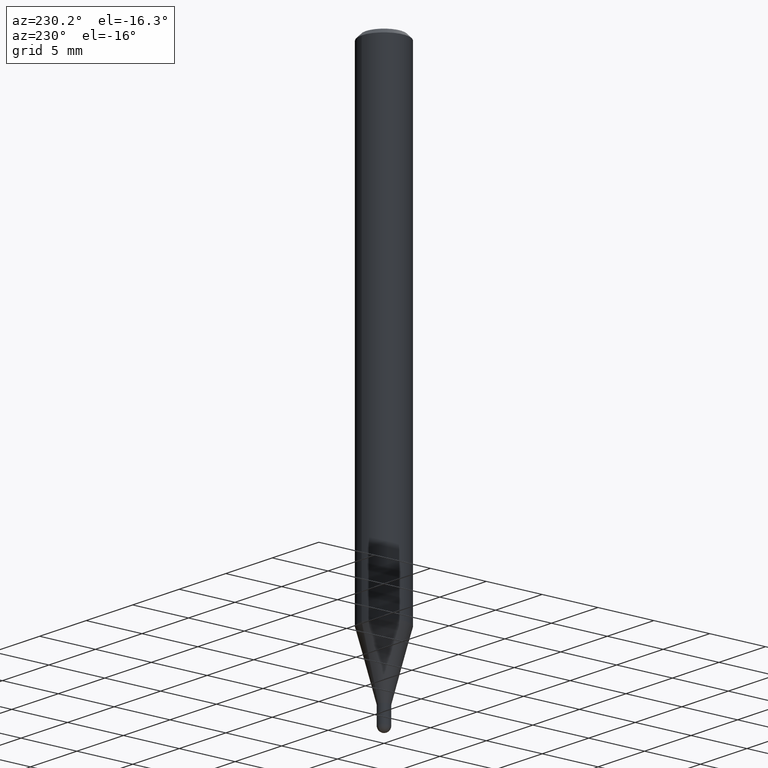
[diagram: clean part render]
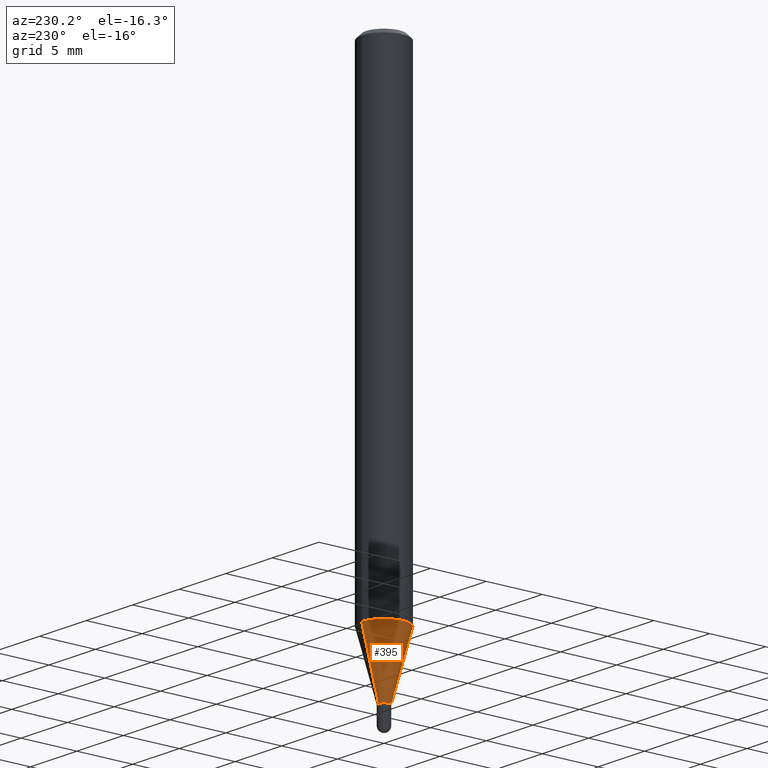
[diagram: same view with one face highlighted and labeled with its STEP entity id]
A machine part, auxiliary view. The second image highlights one B-rep face of the part: STEP entity #395.
In plain terms, the highlighted conical surface has half-angle 15 deg.
Its self-contained STEP definition (entity closure, byte-faithful):
#3 = AXIS2_PLACEMENT_3D ( 'NONE', #57, #369, #54 ) ;
#4 = ORIENTED_EDGE ( 'NONE', *, *, #414, .F. ) ;
#11 = CIRCLE ( 'NONE', #302, 0.07875000000000000056 ) ;
#25 = EDGE_LOOP ( 'NONE', ( #4, #270, #185, #421 ) ) ;
#33 = CARTESIAN_POINT ( 'NONE',  ( -5.499083108677528180E-16, -0.07875000000000582923, -1.669122399813057989 ) ) ;
#39 = CARTESIAN_POINT ( 'NONE',  ( 4.618459731143418039E-29, -6.600381241911171690E-15, -1.889499999999999957 ) ) ;
#40 = FACE_OUTER_BOUND ( 'NONE', #25, .T. ) ;
#54 = DIRECTION ( 'NONE',  ( -6.982962677686265922E-15, -1.000000000000000000, 0.000000000000000000 ) ) ;
#57 = CARTESIAN_POINT ( 'NONE',  ( 4.618459731143418039E-29, -6.600381241911171690E-15, -1.889499999999999957 ) ) ;
#63 = CARTESIAN_POINT ( 'NONE',  ( -1.375643647503727702E-16, -0.01970000000000653173, -1.889499999999999957 ) ) ;
#65 = VERTEX_POINT ( 'NONE', #510 ) ;
#85 = CARTESIAN_POINT ( 'NONE',  ( 4.079796025343252111E-29, -5.830560560031684325E-15, -1.669122399813058433 ) ) ;
#109 = AXIS2_PLACEMENT_3D ( 'NONE', #39, #348, #164 ) ;
#114 = DIRECTION ( 'NONE',  ( -1.807323732225331323E-15, -0.2588190451025183525, 0.9659258262890689783 ) ) ;
#122 = CARTESIAN_POINT ( 'NONE',  ( -1.375643647503727702E-16, -0.01970000000000653173, -1.889499999999999957 ) ) ;
#158 = CARTESIAN_POINT ( 'NONE',  ( 1.399769189447854324E-16, 0.01969999999999333395, -1.889499999999999957 ) ) ;
#164 = DIRECTION ( 'NONE',  ( -6.982962677686265922E-15, -1.000000000000000000, 0.000000000000000000 ) ) ;
#169 = DIRECTION ( 'NONE',  ( -2.444276121271986138E-29, 3.493189331522186389E-15, 1.000000000000000000 ) ) ;
#181 = CIRCLE ( 'NONE', #3, 0.01969999999999993284 ) ;
#185 = ORIENTED_EDGE ( 'NONE', *, *, #339, .T. ) ;
#186 = LINE ( 'NONE', #158, #243 ) ;
#205 = EDGE_CURVE ( 'NONE', #299, #362, #11, .T. ) ;
#222 = VERTEX_POINT ( 'NONE', #63 ) ;
#233 = CARTESIAN_POINT ( 'NONE',  ( 5.595524044111194280E-16, 0.07874999999999415801, -1.669122399813058655 ) ) ;
#243 = VECTOR ( 'NONE', #322, 39.37007874015748854 ) ;
#270 = ORIENTED_EDGE ( 'NONE', *, *, #315, .T. ) ;
#299 = VERTEX_POINT ( 'NONE', #233 ) ;
#301 = LINE ( 'NONE', #122, #446 ) ;
#302 = AXIS2_PLACEMENT_3D ( 'NONE', #85, #169, #328 ) ;
#315 = EDGE_CURVE ( 'NONE', #65, #222, #181, .T. ) ;
#322 = DIRECTION ( 'NONE',  ( 1.839019923739601499E-15, 0.2588190451025251249, 0.9659258262890670910 ) ) ;
#328 = DIRECTION ( 'NONE',  ( -6.982962677686264344E-15, -1.000000000000000000, 3.469013325287953293E-15 ) ) ;
#339 = EDGE_CURVE ( 'NONE', #222, #362, #301, .T. ) ;
#348 = DIRECTION ( 'NONE',  ( -2.444276121271986138E-29, 3.493189331522186389E-15, 1.000000000000000000 ) ) ;
#362 = VERTEX_POINT ( 'NONE', #33 ) ;
#369 = DIRECTION ( 'NONE',  ( -2.444276121271986138E-29, 3.493189331522186389E-15, 1.000000000000000000 ) ) ;
#395 = ADVANCED_FACE ( 'NONE', ( #40 ), #499, .T. ) ;
#414 = EDGE_CURVE ( 'NONE', #65, #299, #186, .T. ) ;
#421 = ORIENTED_EDGE ( 'NONE', *, *, #205, .F. ) ;
#446 = VECTOR ( 'NONE', #114, 39.37007874015748854 ) ;
#499 = CONICAL_SURFACE ( 'NONE', #109, 0.01969999999999993284, 0.2617993877991504625 ) ;
#510 = CARTESIAN_POINT ( 'NONE',  ( 3.497646616779525905E-16, 0.01969999999999333395, -1.889499999999999957 ) ) ;